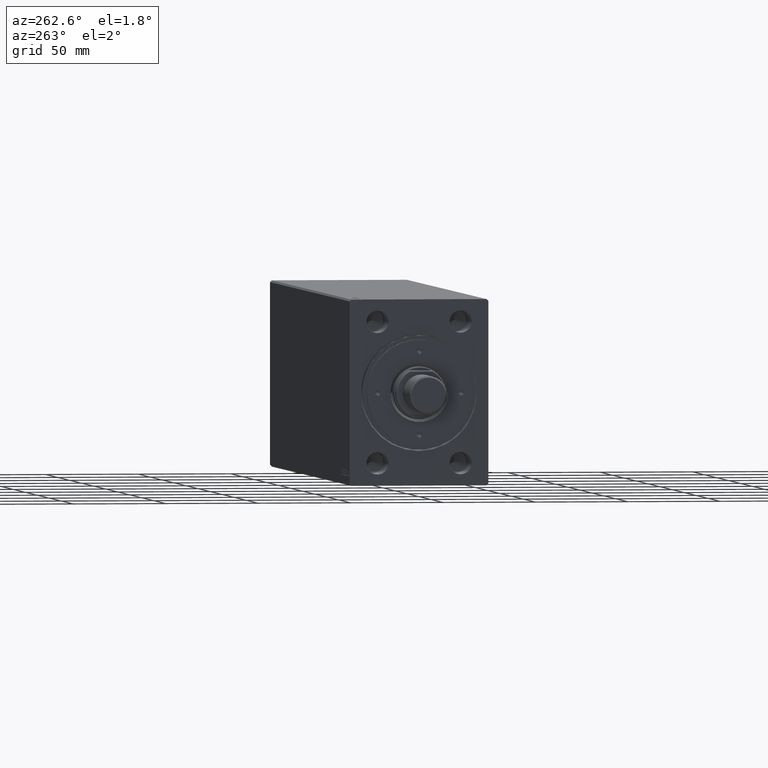
[diagram: clean part render]
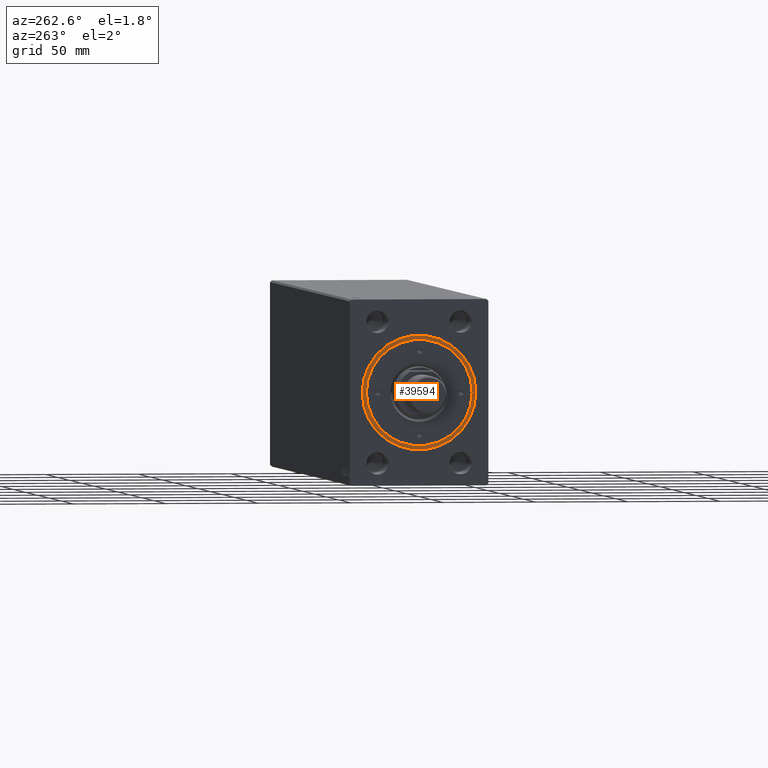
[diagram: same view with one face highlighted and labeled with its STEP entity id]
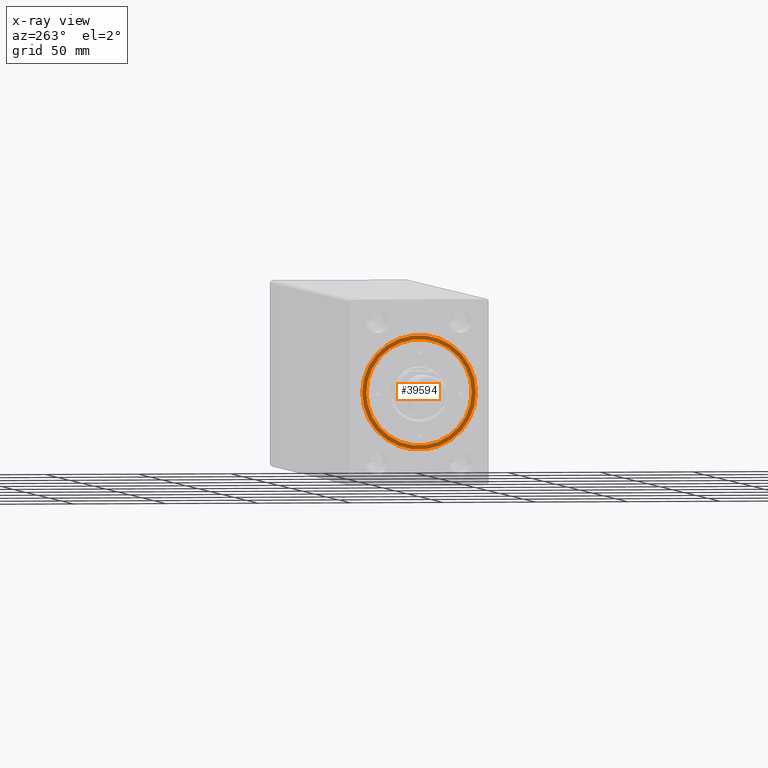
[diagram: x-ray of the same camera — body ghosted, the highlighted face saturated]
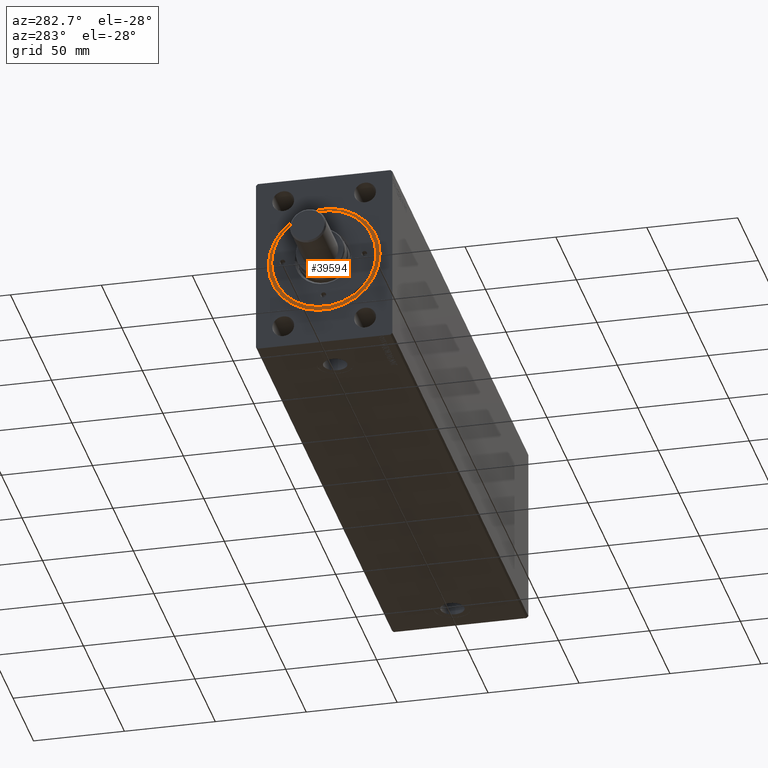
[diagram: same view with one face highlighted and labeled with its STEP entity id]
A machine part, auxiliary view. The second image highlights one B-rep face of the part: STEP entity #39594.
The next image is the same camera in x-ray: the body ghosted, the highlighted face saturated — about 0% of this face is hidden behind the body in this view.
A second angle (auxiliary view) of the same face is appended — the face is thin or edge-on in the first view.
In plain terms, the highlighted planar face has unit normal (-1, 0, 0).
Its self-contained STEP definition (entity closure, byte-faithful):
#382 = DIRECTION ( 'NONE',  ( 1.000000000000000000, 0.000000000000000000, 0.000000000000000000 ) ) ;
#1133 = CARTESIAN_POINT ( 'NONE',  ( 0.000000000000000000, 0.000000000000000000, 8.199999999999999289 ) ) ;
#3399 = FACE_OUTER_BOUND ( 'NONE', #27858, .T. ) ;
#3994 = ORIENTED_EDGE ( 'NONE', *, *, #31729, .F. ) ;
#4255 = VERTEX_POINT ( 'NONE', #25981 ) ;
#4436 = DIRECTION ( 'NONE',  ( 0.000000000000000000, 0.000000000000000000, 1.000000000000000000 ) ) ;
#5792 = CARTESIAN_POINT ( 'NONE',  ( 28.50000000000000000, 3.490243377569956456E-15, 8.199999999999999289 ) ) ;
#6087 = PLANE ( 'NONE',  #17811 ) ;
#7073 = CARTESIAN_POINT ( 'NONE',  ( 0.000000000000000000, 0.000000000000000000, 8.199999999999999289 ) ) ;
#9141 = ORIENTED_EDGE ( 'NONE', *, *, #39981, .T. ) ;
#14211 = AXIS2_PLACEMENT_3D ( 'NONE', #35117, #4436, #15367 ) ;
#15367 = DIRECTION ( 'NONE',  ( 1.000000000000000000, 0.000000000000000000, 0.000000000000000000 ) ) ;
#16977 = EDGE_LOOP ( 'NONE', ( #21673, #3994 ) ) ;
#17326 = VERTEX_POINT ( 'NONE', #18478 ) ;
#17811 = AXIS2_PLACEMENT_3D ( 'NONE', #20189, #33397, #30041 ) ;
#17938 = DIRECTION ( 'NONE',  ( 0.000000000000000000, 0.000000000000000000, 1.000000000000000000 ) ) ;
#18478 = CARTESIAN_POINT ( 'NONE',  ( 30.75000000000000355, 3.765788907378111328E-15, 8.199999999999999289 ) ) ;
#20189 = CARTESIAN_POINT ( 'NONE',  ( 0.000000000000000000, 0.000000000000000000, 8.199999999999999289 ) ) ;
#20746 = DIRECTION ( 'NONE',  ( 0.000000000000000000, 0.000000000000000000, 1.000000000000000000 ) ) ;
#21673 = ORIENTED_EDGE ( 'NONE', *, *, #35518, .F. ) ;
#22886 = FACE_BOUND ( 'NONE', #16977, .T. ) ;
#23679 = VERTEX_POINT ( 'NONE', #36191 ) ;
#24249 = CIRCLE ( 'NONE', #14211, 30.75000000000000355 ) ;
#25801 = AXIS2_PLACEMENT_3D ( 'NONE', #1133, #17938, #28230 ) ;
#25981 = CARTESIAN_POINT ( 'NONE',  ( -28.50000000000000000, 0.000000000000000000, 8.199999999999999289 ) ) ;
#26529 = CIRCLE ( 'NONE', #39393, 30.75000000000000355 ) ;
#27858 = EDGE_LOOP ( 'NONE', ( #9141, #32693 ) ) ;
#28230 = DIRECTION ( 'NONE',  ( 1.000000000000000000, 0.000000000000000000, 0.000000000000000000 ) ) ;
#28656 = CIRCLE ( 'NONE', #25801, 28.50000000000000000 ) ;
#30041 = DIRECTION ( 'NONE',  ( 1.000000000000000000, 0.000000000000000000, -0.000000000000000000 ) ) ;
#30900 = DIRECTION ( 'NONE',  ( 1.000000000000000000, 0.000000000000000000, 0.000000000000000000 ) ) ;
#31093 = EDGE_CURVE ( 'NONE', #17326, #23679, #26529, .T. ) ;
#31729 = EDGE_CURVE ( 'NONE', #37502, #4255, #28656, .T. ) ;
#32693 = ORIENTED_EDGE ( 'NONE', *, *, #31093, .T. ) ;
#33058 = AXIS2_PLACEMENT_3D ( 'NONE', #40531, #41199, #30900 ) ;
#33397 = DIRECTION ( 'NONE',  ( 0.000000000000000000, 0.000000000000000000, 1.000000000000000000 ) ) ;
#35117 = CARTESIAN_POINT ( 'NONE',  ( 0.000000000000000000, 0.000000000000000000, 8.199999999999999289 ) ) ;
#35518 = EDGE_CURVE ( 'NONE', #4255, #37502, #38073, .T. ) ;
#36191 = CARTESIAN_POINT ( 'NONE',  ( -30.75000000000000355, 0.000000000000000000, 8.199999999999999289 ) ) ;
#37502 = VERTEX_POINT ( 'NONE', #5792 ) ;
#38073 = CIRCLE ( 'NONE', #33058, 28.50000000000000000 ) ;
#39393 = AXIS2_PLACEMENT_3D ( 'NONE', #7073, #20746, #382 ) ;
#39594 = ADVANCED_FACE ( 'NONE', ( #22886, #3399 ), #6087, .T. ) ;
#39981 = EDGE_CURVE ( 'NONE', #23679, #17326, #24249, .T. ) ;
#40531 = CARTESIAN_POINT ( 'NONE',  ( 0.000000000000000000, 0.000000000000000000, 8.199999999999999289 ) ) ;
#41199 = DIRECTION ( 'NONE',  ( 0.000000000000000000, 0.000000000000000000, 1.000000000000000000 ) ) ;